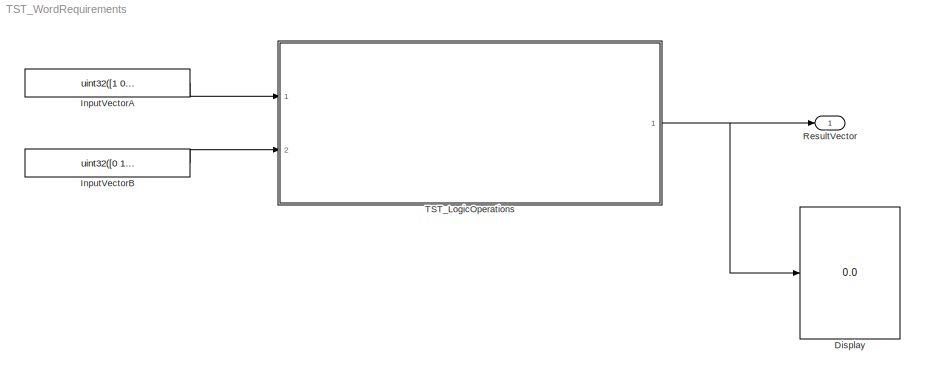
MODEL TST_WordRequirements
KIND model
BLOCK [Display] Display
  Decimation = 1
  Ports = [1]
  SID = 51
BLOCK [Constant] InputVectorA
  SID = 52
  Value = uint32([1 0 1 1])
BLOCK [Constant] InputVectorB
  SID = 53
  Value = uint32([0 1 1 1])
BLOCK [Outport] ResultVector
  IconDisplay = Port number
  SID = 25
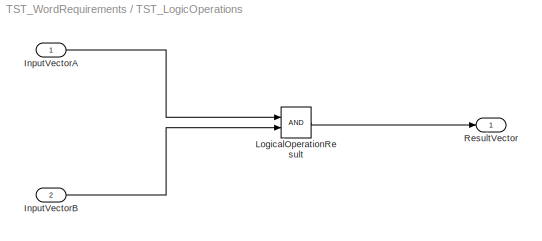
BLOCK [SubSystem] TST_LogicOperations
  Ports = [2, 1]
  RequestExecContextInheritance = off
  SID = 2
  TreatAsAtomicUnit = on
BLOCK [Inport] TST_LogicOperations/InputVectorA
  IconDisplay = Port number
  SID = 47
BLOCK [Inport] TST_LogicOperations/InputVectorB
  IconDisplay = Port number
  Port = 2
  SID = 48
BLOCK [Logic] TST_LogicOperations/LogicalOperationResult
  AllPortsSameDT = off
  OutDataTypeStr = boolean
  Ports = [2, 1]
  SID = 50
BLOCK [Outport] TST_LogicOperations/ResultVector
  IconDisplay = Port number
  SID = 49
LINE InputVectorA:1 -> TST_LogicOperations:1
LINE InputVectorB:1 -> TST_LogicOperations:2
LINE TST_LogicOperations/InputVectorA:1 -> TST_LogicOperations/LogicalOperationResult:1
LINE TST_LogicOperations/InputVectorB:1 -> TST_LogicOperations/LogicalOperationResult:2
LINE TST_LogicOperations/LogicalOperationResult:1 -> TST_LogicOperations/ResultVector:1
NET TST_LogicOperations:1 -> Display:1, ResultVector:1
note: NET lines group one-source signal fan-out (src -> all destinations, sorted); 1:1 wires keep LINE
